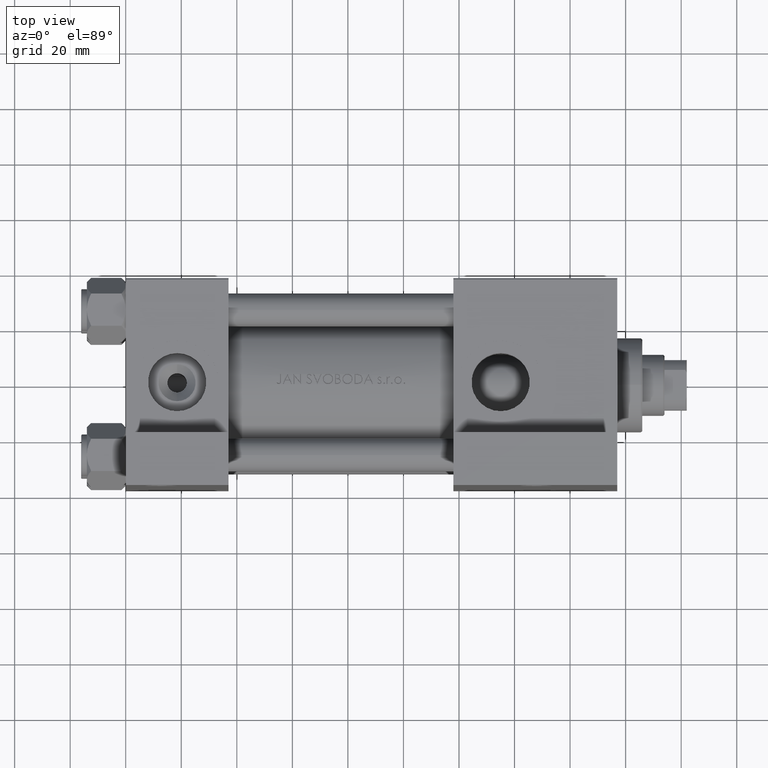
[diagram: clean part render]
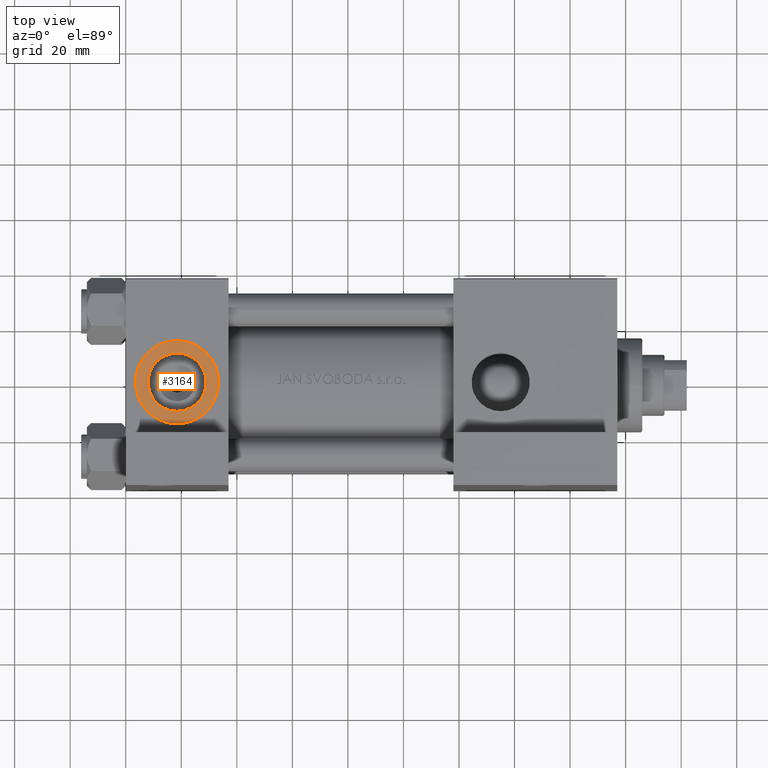
[diagram: same view with one face highlighted and labeled with its STEP entity id]
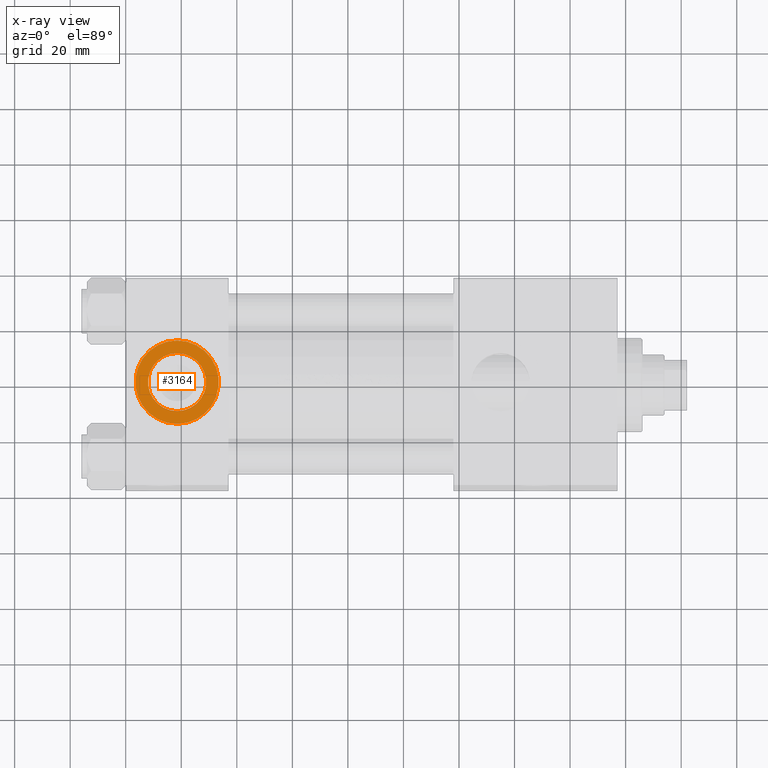
[diagram: x-ray of the same camera — body ghosted, the highlighted face saturated]
A machine part, top view. The second image highlights one B-rep face of the part: STEP entity #3164.
The next image is the same camera in x-ray: the body ghosted, the highlighted face saturated — about 0% of this face is hidden behind the body in this view.
In plain terms, the highlighted planar face has unit normal (0, -0, 1).
Its self-contained STEP definition (entity closure, byte-faithful):
#2441 = FACE_OUTER_BOUND ( 'NONE', #49179, .T. ) ;
#3164 = ADVANCED_FACE ( 'NONE', ( #25848, #2441 ), #17641, .T. ) ;
#3646 = DIRECTION ( 'NONE',  ( 0.000000000000000000, 0.000000000000000000, -1.000000000000000000 ) ) ;
#4085 = AXIS2_PLACEMENT_3D ( 'NONE', #31217, #38928, #19010 ) ;
#5632 = ORIENTED_EDGE ( 'NONE', *, *, #8843, .T. ) ;
#6194 = EDGE_CURVE ( 'NONE', #48324, #14575, #28461, .T. ) ;
#6473 = CIRCLE ( 'NONE', #4085, 10.48000000000000043 ) ;
#6655 = CARTESIAN_POINT ( 'NONE',  ( 18.50000000000000000, -37.30000000000000426, -3.452099717193846907E-15 ) ) ;
#6939 = CARTESIAN_POINT ( 'NONE',  ( 18.50000000000000000, -37.30000000000000426, -3.452099717193846907E-15 ) ) ;
#7603 = EDGE_CURVE ( 'NONE', #47610, #22841, #14153, .T. ) ;
#8843 = EDGE_CURVE ( 'NONE', #22841, #47610, #29337, .T. ) ;
#11165 = DIRECTION ( 'NONE',  ( 0.000000000000000000, 0.000000000000000000, -1.000000000000000000 ) ) ;
#12360 = CARTESIAN_POINT ( 'NONE',  ( 18.50000000000000000, -37.30000000000000426, 10.47999999999999687 ) ) ;
#13485 = ORIENTED_EDGE ( 'NONE', *, *, #7603, .T. ) ;
#14153 = CIRCLE ( 'NONE', #46781, 15.00000000000000178 ) ;
#14575 = VERTEX_POINT ( 'NONE', #48456 ) ;
#14852 = DIRECTION ( 'NONE',  ( 0.000000000000000000, -1.000000000000000000, -8.673617379884036705E-17 ) ) ;
#16674 = DIRECTION ( 'NONE',  ( 0.000000000000000000, -1.000000000000000000, -8.673617379884036705E-17 ) ) ;
#17641 = PLANE ( 'NONE',  #33089 ) ;
#19010 = DIRECTION ( 'NONE',  ( 0.000000000000000000, 0.000000000000000000, -1.000000000000000000 ) ) ;
#20482 = AXIS2_PLACEMENT_3D ( 'NONE', #6655, #14852, #3646 ) ;
#21142 = CARTESIAN_POINT ( 'NONE',  ( 18.50000000000000000, -37.30000000000000426, -3.452099717193846907E-15 ) ) ;
#22841 = VERTEX_POINT ( 'NONE', #32085 ) ;
#25504 = ORIENTED_EDGE ( 'NONE', *, *, #6194, .F. ) ;
#25848 = FACE_BOUND ( 'NONE', #36217, .T. ) ;
#25873 = DIRECTION ( 'NONE',  ( 0.000000000000000000, -1.000000000000000000, -8.673617379884036705E-17 ) ) ;
#27248 = ORIENTED_EDGE ( 'NONE', *, *, #46442, .F. ) ;
#28461 = CIRCLE ( 'NONE', #20482, 10.48000000000000043 ) ;
#29094 = DIRECTION ( 'NONE',  ( 0.000000000000000000, 8.673617379884036705E-17, -1.000000000000000000 ) ) ;
#29337 = CIRCLE ( 'NONE', #29377, 15.00000000000000178 ) ;
#29377 = AXIS2_PLACEMENT_3D ( 'NONE', #6939, #25873, #11165 ) ;
#31217 = CARTESIAN_POINT ( 'NONE',  ( 18.50000000000000000, -37.30000000000000426, -3.452099717193846907E-15 ) ) ;
#32085 = CARTESIAN_POINT ( 'NONE',  ( 18.50000000000000355, -37.30000000000000426, 14.99999999999999822 ) ) ;
#32821 = CARTESIAN_POINT ( 'NONE',  ( 18.50000000000000000, -37.30000000000000426, -3.452099717193846907E-15 ) ) ;
#33089 = AXIS2_PLACEMENT_3D ( 'NONE', #32821, #40527, #29094 ) ;
#36074 = DIRECTION ( 'NONE',  ( 0.000000000000000000, 0.000000000000000000, -1.000000000000000000 ) ) ;
#36217 = EDGE_LOOP ( 'NONE', ( #27248, #25504 ) ) ;
#38928 = DIRECTION ( 'NONE',  ( 0.000000000000000000, -1.000000000000000000, -8.673617379884036705E-17 ) ) ;
#40527 = DIRECTION ( 'NONE',  ( 0.000000000000000000, -1.000000000000000000, -8.673617379884036705E-17 ) ) ;
#43942 = CARTESIAN_POINT ( 'NONE',  ( 18.50000000000000000, -37.30000000000000426, -15.00000000000000533 ) ) ;
#46442 = EDGE_CURVE ( 'NONE', #14575, #48324, #6473, .T. ) ;
#46781 = AXIS2_PLACEMENT_3D ( 'NONE', #21142, #16674, #36074 ) ;
#47610 = VERTEX_POINT ( 'NONE', #43942 ) ;
#48324 = VERTEX_POINT ( 'NONE', #12360 ) ;
#48456 = CARTESIAN_POINT ( 'NONE',  ( 18.50000000000000000, -37.30000000000000426, -10.48000000000000398 ) ) ;
#49179 = EDGE_LOOP ( 'NONE', ( #13485, #5632 ) ) ;